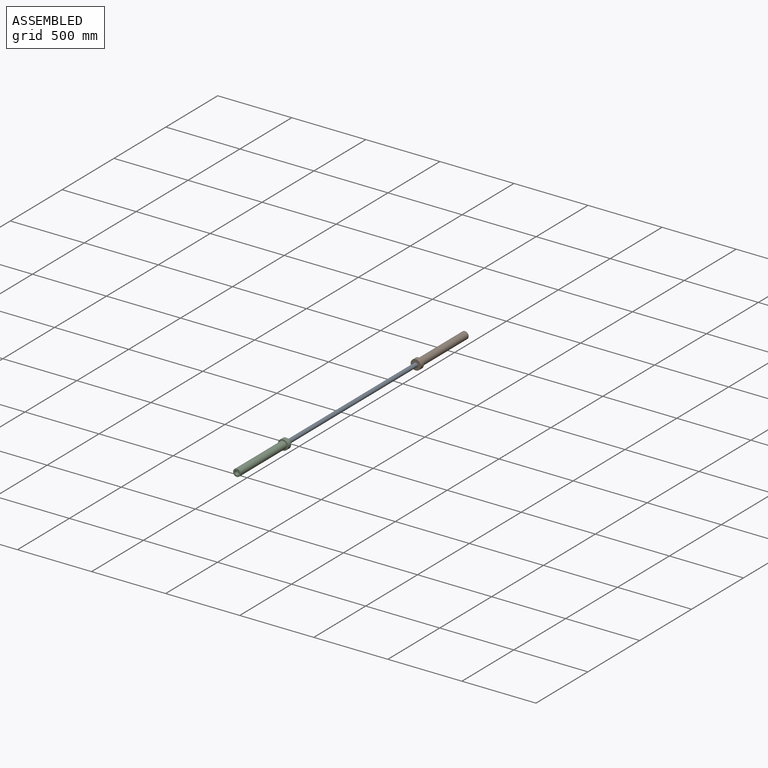
[diagram: assembled view]
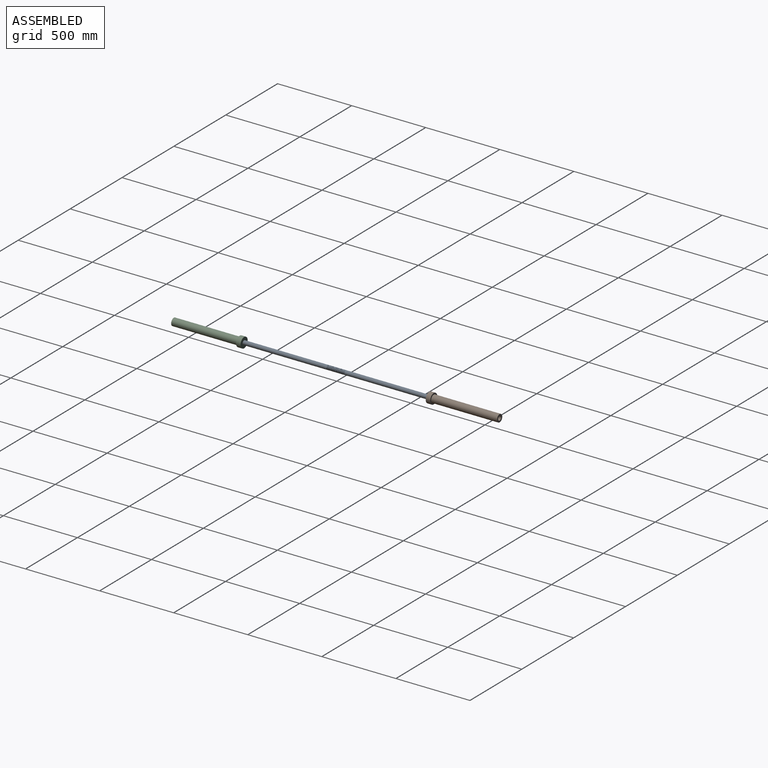
[diagram: assembled view, second angle]
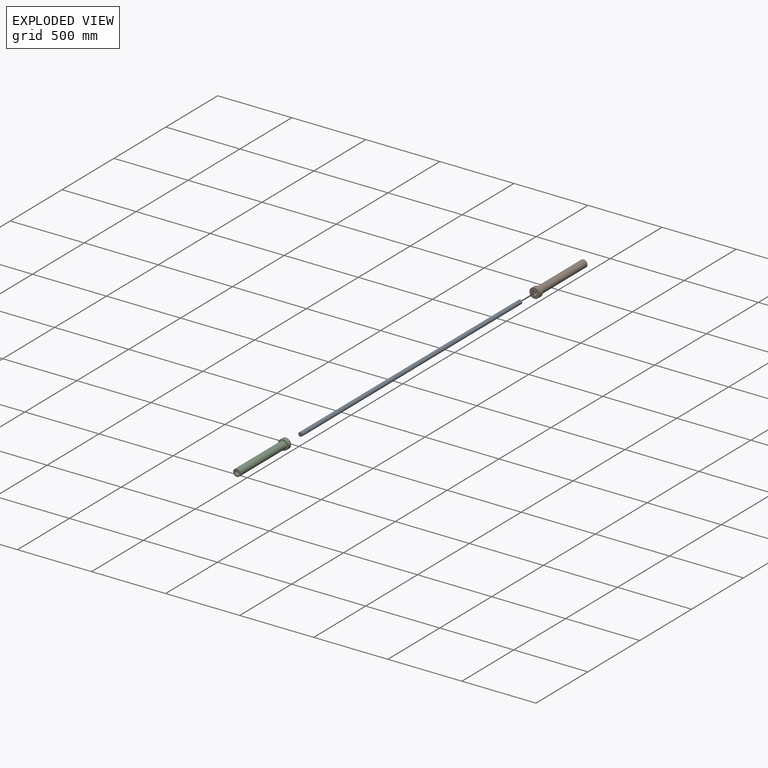
[diagram: exploded view]
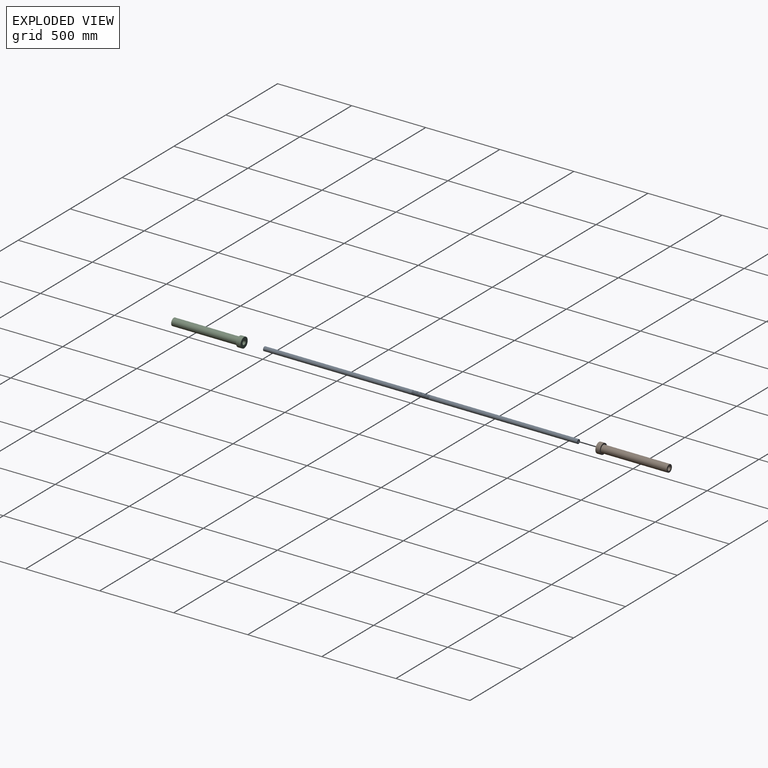
[diagram: exploded view, second angle]
ASSEMBLY  parts=3 mates=2
PART A: 58 faces, bbox 28.4x2120.4x32.7 mm
  f0: cylinder r=14mm len=1004.2mm, axis (0,1,0), area 88179mm2, adj f1,f50,f51,f52,f55
  f1: cylinder r=14mm len=28mm, axis (0,1,0), area 145.1mm2, adj f0,f2,f50,f51
  f2: cylinder r=14mm len=28mm, axis (0,1,0), area 145.1mm2, adj f1,f3,f50,f51
  f3: cylinder r=14mm len=28mm, axis (0,1,0), area 145.1mm2, adj f2,f4,f50,f51
  f4: cylinder r=14mm len=28mm, axis (0,1,0), area 145.1mm2, adj f3,f5,f50,f51
  f5: cylinder r=14mm len=28mm, axis (0,1,0), area 145.1mm2, adj f4,f6,f50,f51
  f6: cylinder r=14mm len=28mm, axis (0,1,0), area 145.1mm2, adj f5,f7,f50,f51
  f7: cylinder r=14mm len=28mm, axis (0,1,0), area 145.1mm2, adj f6,f8,f50,f51
  f8: cylinder r=14mm len=28mm, axis (0,1,0), area 145.1mm2, adj f7,f9,f50,f51
  f9: cylinder r=14mm len=28mm, axis (0,1,0), area 145.1mm2, adj f8,f10,f50,f51
  f10: cylinder r=14mm len=28mm, axis (0,1,0), area 145.1mm2, adj f9,f11,f50,f51
  f11: cylinder r=14mm len=28mm, axis (0,1,0), area 145.1mm2, adj f10,f12,f50,f51
  f12: cylinder r=14mm len=28mm, axis (0,1,0), area 145.1mm2, adj f11,f13,f50,f51
  f13: cylinder r=14mm len=28mm, axis (0,1,0), area 145.1mm2, adj f12,f14,f50,f51
  f14: cylinder r=14mm len=28mm, axis (0,1,0), area 145.2mm2, adj f13,f15,f50,f51
  f15: cylinder r=14mm len=28mm, axis (0,1,0), area 145.2mm2, adj f14,f16,f50,f51
  f16: cylinder r=14mm len=28mm, axis (0,1,0), area 145.2mm2, adj f15,f17,f50,f51
  f17: cylinder r=14mm len=28mm, axis (0,1,0), area 145.1mm2, adj f16,f18,f50,f51
  f18: cylinder r=14mm len=28mm, axis (0,1,0), area 145.1mm2, adj f17,f19,f50,f51
  f19: cylinder r=14mm len=28mm, axis (0,1,0), area 145.1mm2, adj f18,f20,f50,f51
  f20: cylinder r=14mm len=28mm, axis (0,1,0), area 145.2mm2, adj f19,f21,f50,f51
  f21: cylinder r=14mm len=28mm, axis (0,1,0), area 145.2mm2, adj f20,f22,f50,f51
  f22: cylinder r=14mm len=28mm, axis (0,1,0), area 145.2mm2, adj f21,f23,f50,f51
  f23: cylinder r=14mm len=28mm, axis (0,1,0), area 145.2mm2, adj f22,f24,f50,f51
  f24: cylinder r=14mm len=28mm, axis (0,1,0), area 145.1mm2, adj f23,f25,f50,f51
  f25: cylinder r=14mm len=28mm, axis (0,1,0), area 145.1mm2, adj f24,f26,f50,f51
  f26: cylinder r=14mm len=28mm, axis (0,1,0), area 145.1mm2, adj f25,f27,f50,f51
  f27: cylinder r=14mm len=28mm, axis (0,1,0), area 145.1mm2, adj f26,f28,f50,f51
  f28: cylinder r=14mm len=28mm, axis (0,1,0), area 145.1mm2, adj f27,f29,f50,f51
  f29: cylinder r=14mm len=28mm, axis (0,1,0), area 145.1mm2, adj f28,f30,f50,f51
  f30: cylinder r=14mm len=28mm, axis (0,1,0), area 145.1mm2, adj f29,f31,f50,f51
  f31: cylinder r=14mm len=28mm, axis (0,1,0), area 145.1mm2, adj f30,f32,f50,f51
  f32: cylinder r=14mm len=28mm, axis (0,1,0), area 145.1mm2, adj f31,f33,f50,f51
  f33: cylinder r=14mm len=28mm, axis (0,1,0), area 145.1mm2, adj f32,f34,f50,f51
  f34: cylinder r=14mm len=28mm, axis (0,1,0), area 145.1mm2, adj f33,f35,f50,f51
  f35: cylinder r=14mm len=28mm, axis (0,1,0), area 145.1mm2, adj f34,f36,f50,f51
  f36: cylinder r=14mm len=28mm, axis (0,1,0), area 145.1mm2, adj f35,f37,f50,f51
  f37: cylinder r=14mm len=28mm, axis (0,1,0), area 145.1mm2, adj f36,f38,f50,f51
  f38: cylinder r=14mm len=28mm, axis (0,1,0), area 145.1mm2, adj f37,f39,f50,f51
  f39: cylinder r=14mm len=28mm, axis (0,1,0), area 145.1mm2, adj f38,f40,f50,f51
  f40: cylinder r=14mm len=28mm, axis (0,1,0), area 145.2mm2, adj f39,f41,f50,f51
  f41: cylinder r=14mm len=28mm, axis (0,1,0), area 145.2mm2, adj f40,f42,f50,f51
  f42: cylinder r=14mm len=28mm, axis (0,1,0), area 145.2mm2, adj f41,f43,f50,f51
  f43: cylinder r=14mm len=28mm, axis (0,1,0), area 145.1mm2, adj f42,f44,f50,f51
  f44: cylinder r=14mm len=28mm, axis (0,1,0), area 145.1mm2, adj f43,f45,f50,f51
  f45: cylinder r=14mm len=28mm, axis (0,1,0), area 145.1mm2, adj f44,f46,f50,f51
  f46: cylinder r=14mm len=28mm, axis (0,1,0), area 145.1mm2, adj f45,f47,f50,f51
  f47: cylinder r=14mm len=28mm, axis (0,1,0), area 145.2mm2, adj f46,f48,f50,f51
  f48: cylinder r=14mm len=28mm, axis (0,1,0), area 145.2mm2, adj f47,f49,f50,f51
  f49: cylinder r=14mm len=1002.25mm, axis (0,1,0), area 88050.9mm2, adj f48,f50,f51,f53,f54
  f50: bspline ~120.38x32.33mm, area 3208.4mm2, adj f0,f1,f2,f3,f4,f5,f6,f7
  f51: bspline ~120.38x32.33mm, area 3231.5mm2, adj f0,f1,f2,f3,f4,f5,f6,f7
  f52: plane 0.75x0.65mm, normal (0,0,-1), area 0.2mm2, adj f0,f50,f51
  f53: plane 28x28mm, normal (0,1,0), area 439mm2, adj f49,f57
  f54: plane 19.61x14.36mm, normal (0,-1,0), area 8.8mm2, adj f49,f50,f51
  f55: plane 28x28mm, normal (0,-1,0), area 615.8mm2, adj f0
  f56: cone r=0mm half-angle=59deg, axis (0,1,0), area 206.2mm2, adj f57
  f57: cylinder r=7.5mm len=25mm, axis (0,1,0), area 1178.1mm2, adj f53,f56
PART B: 10 faces, bbox 69x475x69 mm
  f0: cylinder r=14.5mm len=435mm, axis (0,-1,0), area 39631.2mm2, adj f1,f9
  f1: plane 29x29mm, normal (0,-1,0), area 483.8mm2, adj f0,f2
  f2: cylinder r=7.5mm len=16.93mm, axis (0,-1,0), area 798mm2, adj f1,f3
  f3: plane 29x29mm, normal (0,1,0), area 483.8mm2, adj f2,f4
  f4: cylinder r=14.5mm len=29mm, axis (0,-1,0), area 2101.4mm2, adj f3,f5
  f5: plane 50x50mm, normal (0,1,0), area 1303mm2, adj f4,f6
  f6: cylinder r=25mm len=445mm, axis (0,-1,0), area 69900.4mm2, adj f5,f7
  f7: plane 69x69mm, normal (0,1,0), area 1775.8mm2, adj f6,f8
  f8: cylinder r=34.5mm len=69mm, axis (0,-1,0), area 6503.1mm2, adj f7,f9
  f9: plane 69x69mm, normal (0,-1,0), area 3078.8mm2, adj f0,f8
PART C: same geometry as B
PLACE A at identity fixed
PLACE B rot(axis=(0,1,0),83deg) t=(0,706.02,0)mm
PLACE C rot(axis=(0.43,0,-0.9),180deg) t=(0,-706.02,0)mm
MATE cylindrical B.f0 <-> A.f0  axis (0,-1,0) through (0,625,0)mm
MATE cylindrical C.f0 <-> A.f0  axis (0,1,0) through (0,-625,0)mm
